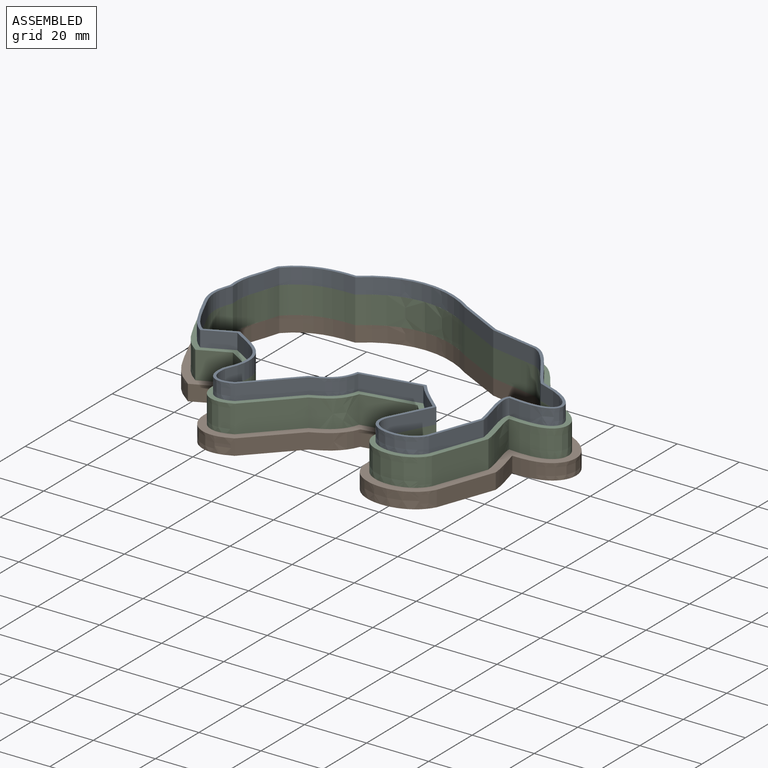
[diagram: assembled view]
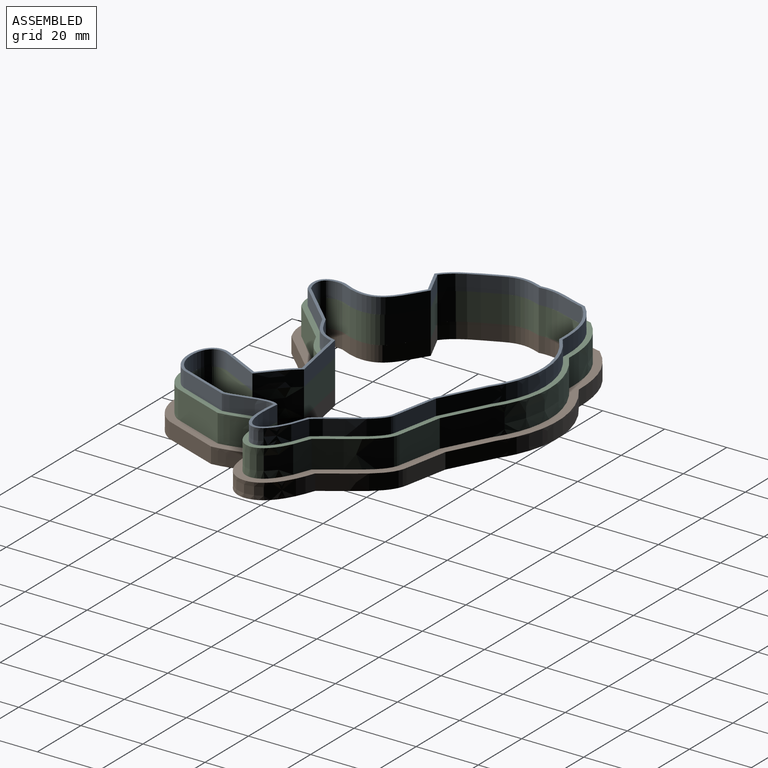
[diagram: assembled view, second angle]
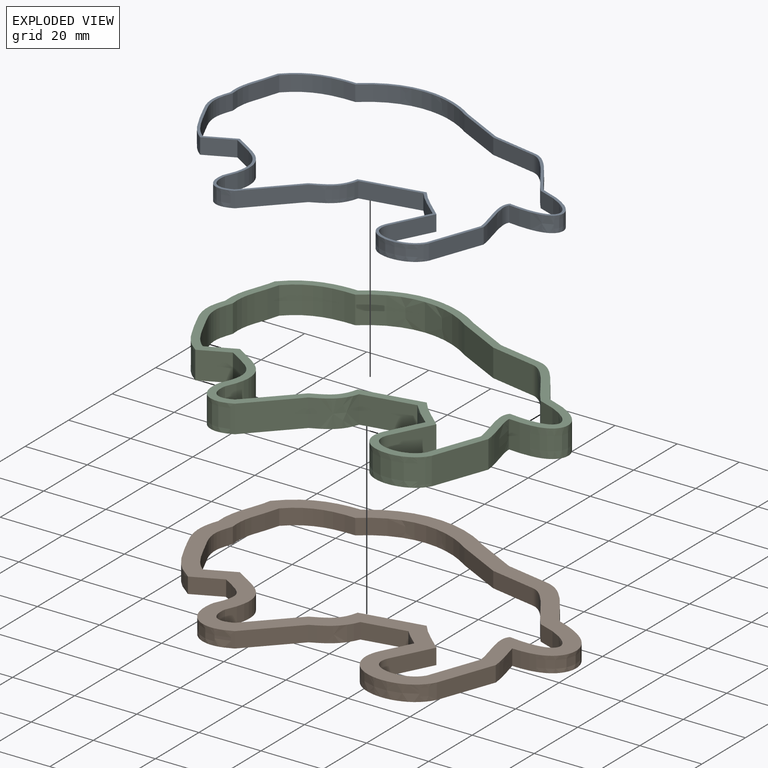
[diagram: exploded view]
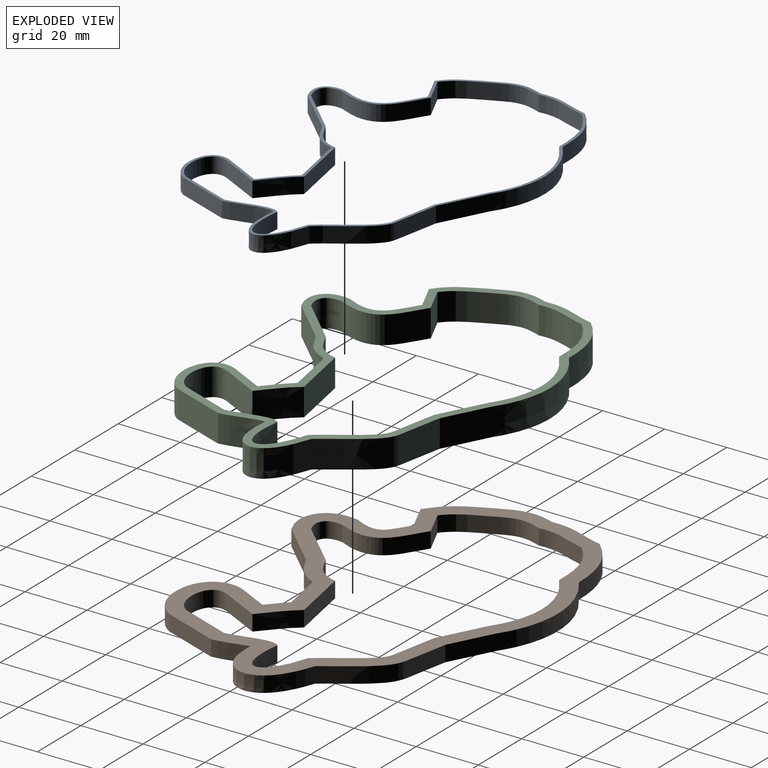
[diagram: exploded view, second angle]
ASSEMBLY  parts=3 mates=2
PART A: 42 faces, bbox 123.7x88.7x10.1 mm
  f0: plane 123.73x88.65mm, normal (0,0,1), area 336.6mm2, adj f2,f3,f4,f5,f6,f7,f8,f9
  f1: plane 123.73x88.65mm, normal (0,0,-1), area 336.6mm2, adj f2,f3,f4,f5,f6,f7,f8,f9
  f2: extruded ~34.96x6.77mm, area 191.8mm2, adj f0,f1,f3,f21
  f3: extruded ~20.36x7.11mm, area 113.2mm2, adj f0,f1,f2,f4
  f4: extruded ~16.67x5.08mm, area 87.5mm2, adj f0,f1,f3,f5
  f5: extruded ~12.4x5.08mm, area 65.3mm2, adj f0,f1,f4,f6
  f6: extruded ~15.19x9.5mm, area 92.1mm2, adj f0,f1,f5,f7
  f7: plane 9.07x5.08mm, normal (0.42,-0.91,0), area 50.8mm2, adj f0,f1,f6,f8
  f8: extruded ~20.1x11.58mm, area 131.9mm2, adj f0,f1,f7,f9
  f9: extruded ~8.41x7.3mm, area 70.8mm2, adj f0,f1,f8,f10
  f10: plane 14.35x13.69mm, normal (0.72,-0.69,0), area 100.7mm2, adj f0,f1,f9,f11
  f11: extruded ~9.47x9.45mm, area 71.1mm2, adj f0,f1,f10,f12
  f12: plane 18.52x5.08mm, normal (0.19,-0.98,0), area 95.8mm2, adj f0,f1,f11,f13
  f13: extruded ~9.21x8.91mm, area 65.2mm2, adj f0,f1,f12,f14
  f14: plane 11.99x6.1mm, normal (-0.89,0.45,0), area 68.3mm2, adj f0,f1,f13,f15
  f15: extruded ~16.71x8.44mm, area 123mm2, adj f0,f1,f14,f16
  f16: plane 16.59x6.05mm, normal (0.94,-0.34,0), area 89.7mm2, adj f0,f1,f15,f17
  f17: extruded ~15.04x5.08mm, area 78.3mm2, adj f0,f1,f16,f18
  f18: extruded ~14.65x13.38mm, area 167.3mm2, adj f0,f1,f17,f19
  f19: extruded ~17.3x14.9mm, area 118mm2, adj f0,f1,f18,f20
  f20: plane 14.65x5.08mm, normal (0.19,0.98,0), area 75.8mm2, adj f0,f1,f19,f21
  f21: plane 14.39x7.41mm, normal (0.46,0.89,0), area 82.2mm2, adj f0,f1,f2,f20
  f22: extruded ~34.19x6.78mm, area 188mm2, adj f0,f1,f23,f41
  f23: extruded ~19.85x6.65mm, area 109.9mm2, adj f0,f1,f22,f24
  f24: extruded ~16.32x5.08mm, area 85.7mm2, adj f0,f1,f23,f25
  f25: extruded ~11.91x5.08mm, area 62.7mm2, adj f0,f1,f24,f26
  f26: extruded ~14.56x8.82mm, area 87.3mm2, adj f0,f1,f25,f27
  f27: plane 9.04x5.08mm, normal (-0.42,0.91,0), area 50.6mm2, adj f0,f1,f26,f28
  f28: extruded ~21.4x12.38mm, area 140.3mm2, adj f0,f1,f27,f29
  f29: extruded ~7x6.14mm, area 59.6mm2, adj f0,f1,f28,f30
  f30: plane 14.34x13.68mm, normal (-0.72,0.69,0), area 100.7mm2, adj f0,f1,f29,f31
  f31: extruded ~9.48x9.26mm, area 70.9mm2, adj f0,f1,f30,f32
  f32: plane 19.63x5.08mm, normal (-0.19,0.98,0), area 101.5mm2, adj f0,f1,f31,f33
  f33: extruded ~9.93x9.71mm, area 70.7mm2, adj f0,f1,f32,f34
  f34: plane 12.57x6.4mm, normal (0.89,-0.45,0), area 71.7mm2, adj f0,f1,f33,f35
  f35: extruded ~15.01x7.15mm, area 108.6mm2, adj f0,f1,f34,f36
  f36: plane 16.32x5.96mm, normal (-0.94,0.34,0), area 88.3mm2, adj f0,f1,f35,f37
  f37: extruded ~15.88x5.08mm, area 83.3mm2, adj f0,f1,f36,f38
  f38: extruded ~14.14x11.72mm, area 157.7mm2, adj f0,f1,f37,f39
  f39: extruded ~17.2x14.56mm, area 116.2mm2, adj f0,f1,f38,f40
  f40: plane 14.78x5.08mm, normal (-0.19,-0.98,0), area 76.5mm2, adj f0,f1,f39,f41
  f41: plane 14.56x7.5mm, normal (-0.46,-0.89,0), area 83.2mm2, adj f0,f1,f22,f40
PART B: 42 faces, bbox 129.5x94.9x9.3 mm
  f0: plane 129.46x94.93mm, normal (0,0,1), area 1984.1mm2, adj f2,f3,f4,f5,f6,f7,f8,f9
  f1: plane 129.46x94.93mm, normal (0,0,-1), area 1984.1mm2, adj f2,f3,f4,f5,f6,f7,f8,f9
  f2: extruded ~38.55x6.75mm, area 210mm2, adj f0,f1,f3,f21
  f3: extruded ~22.77x9.25mm, area 128.7mm2, adj f0,f1,f2,f4
  f4: extruded ~18.22x5.08mm, area 95.3mm2, adj f0,f1,f3,f5
  f5: extruded ~14.79x5.08mm, area 77.5mm2, adj f0,f1,f4,f6
  f6: extruded ~18.17x12.72mm, area 115.8mm2, adj f0,f1,f5,f7
  f7: plane 9.29x5.08mm, normal (0.42,-0.91,0), area 52mm2, adj f0,f1,f6,f8
  f8: extruded ~14.06x7.71mm, area 92.2mm2, adj f0,f1,f7,f9
  f9: extruded ~15.07x12.78mm, area 123.6mm2, adj f0,f1,f8,f10
  f10: plane 14.39x13.72mm, normal (0.72,-0.69,0), area 101mm2, adj f0,f1,f9,f11
  f11: extruded ~10.17x9.24mm, area 71.8mm2, adj f0,f1,f10,f12
  f12: plane 13.67x5.08mm, normal (0.19,-0.98,0), area 70.7mm2, adj f0,f1,f11,f13
  f13: extruded ~5.64x5.31mm, area 39.4mm2, adj f0,f1,f12,f14
  f14: plane 9.12x5.08mm, normal (-0.89,0.45,0), area 52mm2, adj f0,f1,f13,f15
  f15: extruded ~24.72x14.52mm, area 191.3mm2, adj f0,f1,f14,f16
  f16: plane 17.84x6.51mm, normal (0.94,-0.34,0), area 96.5mm2, adj f0,f1,f15,f17
  f17: extruded ~10.99x5.08mm, area 57.2mm2, adj f0,f1,f16,f18
  f18: extruded ~21.19x14.67mm, area 199.9mm2, adj f0,f1,f17,f19
  f19: extruded ~17.8x16.6mm, area 126.6mm2, adj f0,f1,f18,f20
  f20: plane 14.04x5.08mm, normal (0.19,0.98,0), area 72.7mm2, adj f0,f1,f19,f21
  f21: plane 13.62x7.02mm, normal (0.46,0.89,0), area 77.8mm2, adj f0,f1,f2,f20
  f22: extruded ~34.19x6.78mm, area 188mm2, adj f0,f1,f23,f41
  f23: extruded ~19.85x6.65mm, area 109.9mm2, adj f0,f1,f22,f24
  f24: extruded ~16.32x5.08mm, area 85.7mm2, adj f0,f1,f23,f25
  f25: extruded ~11.91x5.08mm, area 62.7mm2, adj f0,f1,f24,f26
  f26: extruded ~14.56x8.82mm, area 87.3mm2, adj f0,f1,f25,f27
  f27: plane 9.04x5.08mm, normal (-0.42,0.91,0), area 50.6mm2, adj f0,f1,f26,f28
  f28: extruded ~21.4x12.38mm, area 140.3mm2, adj f0,f1,f27,f29
  f29: extruded ~7x6.14mm, area 59.6mm2, adj f0,f1,f28,f30
  f30: plane 14.34x13.68mm, normal (-0.72,0.69,0), area 100.7mm2, adj f0,f1,f29,f31
  f31: extruded ~9.48x9.26mm, area 70.9mm2, adj f0,f1,f30,f32
  f32: plane 19.63x5.08mm, normal (-0.19,0.98,0), area 101.5mm2, adj f0,f1,f31,f33
  f33: extruded ~9.93x9.71mm, area 70.7mm2, adj f0,f1,f32,f34
  f34: plane 12.57x6.4mm, normal (0.89,-0.45,0), area 71.7mm2, adj f0,f1,f33,f35
  f35: extruded ~15.01x7.15mm, area 108.6mm2, adj f0,f1,f34,f36
  f36: plane 16.32x5.96mm, normal (-0.94,0.34,0), area 88.3mm2, adj f0,f1,f35,f37
  f37: extruded ~15.88x5.08mm, area 83.3mm2, adj f0,f1,f36,f38
  f38: extruded ~14.14x11.72mm, area 157.7mm2, adj f0,f1,f37,f39
  f39: extruded ~17.2x14.56mm, area 116.2mm2, adj f0,f1,f38,f40
  f40: plane 14.78x5.08mm, normal (-0.19,-0.98,0), area 76.5mm2, adj f0,f1,f39,f41
  f41: plane 14.56x7.5mm, normal (-0.46,-0.89,0), area 83.2mm2, adj f0,f1,f22,f40
PART C: 42 faces, bbox 124.3x89.6x12.9 mm
  f0: plane 124.31x89.63mm, normal (0,0,1), area 973.9mm2, adj f2,f3,f4,f5,f6,f7,f8,f9
  f1: plane 124.31x89.63mm, normal (0,0,-1), area 973.9mm2, adj f2,f3,f4,f5,f6,f7,f8,f9
  f2: extruded ~36.38x8.89mm, area 348.3mm2, adj f0,f1,f3,f21
  f3: extruded ~21.3x8.89mm, area 208.9mm2, adj f0,f1,f2,f4
  f4: extruded ~17.29x8.89mm, area 158.6mm2, adj f0,f1,f3,f5
  f5: extruded ~13.33x8.89mm, area 122.7mm2, adj f0,f1,f4,f6
  f6: extruded ~16.36x10.77mm, area 176.9mm2, adj f0,f1,f5,f7
  f7: plane 9.14x8.89mm, normal (0.42,-0.91,0), area 89.6mm2, adj f0,f1,f6,f8
  f8: extruded ~17.71x10.07mm, area 203.8mm2, adj f0,f1,f7,f9
  f9: extruded ~11.03x9.46mm, area 160.8mm2, adj f0,f1,f8,f10
  f10: plane 14.37x13.7mm, normal (0.72,-0.69,0), area 176.5mm2, adj f0,f1,f9,f11
  f11: extruded ~9.79x9.37mm, area 125.1mm2, adj f0,f1,f10,f12
  f12: plane 16.53x8.89mm, normal (0.19,-0.98,0), area 149.6mm2, adj f0,f1,f11,f13
  f13: extruded ~8.89x7.84mm, area 96.4mm2, adj f0,f1,f12,f14
  f14: plane 10.88x8.89mm, normal (-0.89,0.45,0), area 108.5mm2, adj f0,f1,f13,f15
  f15: extruded ~19.87x10.83mm, area 261.7mm2, adj f0,f1,f14,f16
  f16: plane 17.08x8.89mm, normal (0.94,-0.34,0), area 161.6mm2, adj f0,f1,f15,f17
  f17: extruded ~13.44x8.89mm, area 122.4mm2, adj f0,f1,f16,f18
  f18: extruded ~16.47x15.07mm, area 319mm2, adj f0,f1,f17,f19
  f19: extruded ~17.49x15.56mm, area 212.2mm2, adj f0,f1,f18,f20
  f20: plane 14.41x8.89mm, normal (0.19,0.98,0), area 130.5mm2, adj f0,f1,f19,f21
  f21: plane 14.09x8.89mm, normal (0.46,0.89,0), area 140.9mm2, adj f0,f1,f2,f20
  f22: extruded ~34.19x8.89mm, area 329mm2, adj f0,f1,f23,f41
  f23: extruded ~19.85x8.89mm, area 192.3mm2, adj f0,f1,f22,f24
  f24: extruded ~16.32x8.89mm, area 149.9mm2, adj f0,f1,f23,f25
  f25: extruded ~11.91x8.89mm, area 109.8mm2, adj f0,f1,f24,f26
  f26: extruded ~14.56x8.89mm, area 152.8mm2, adj f0,f1,f25,f27
  f27: plane 9.04x8.89mm, normal (-0.42,0.91,0), area 88.6mm2, adj f0,f1,f26,f28
  f28: extruded ~21.4x12.38mm, area 245.5mm2, adj f0,f1,f27,f29
  f29: extruded ~8.89x7mm, area 104.2mm2, adj f0,f1,f28,f30
  f30: plane 14.34x13.68mm, normal (-0.72,0.69,0), area 176.1mm2, adj f0,f1,f29,f31
  f31: extruded ~9.48x9.26mm, area 124mm2, adj f0,f1,f30,f32
  f32: plane 19.63x8.89mm, normal (-0.19,0.98,0), area 177.7mm2, adj f0,f1,f31,f33
  f33: extruded ~9.93x9.71mm, area 123.7mm2, adj f0,f1,f32,f34
  f34: plane 12.57x8.89mm, normal (0.89,-0.45,0), area 125.4mm2, adj f0,f1,f33,f35
  f35: extruded ~15.01x8.89mm, area 190.1mm2, adj f0,f1,f34,f36
  f36: plane 16.32x8.89mm, normal (-0.94,0.34,0), area 154.5mm2, adj f0,f1,f35,f37
  f37: extruded ~15.88x8.89mm, area 145.9mm2, adj f0,f1,f36,f38
  f38: extruded ~14.14x11.72mm, area 276mm2, adj f0,f1,f37,f39
  f39: extruded ~17.2x14.56mm, area 203.4mm2, adj f0,f1,f38,f40
  f40: plane 14.78x8.89mm, normal (-0.19,-0.98,0), area 133.8mm2, adj f0,f1,f39,f41
  f41: plane 14.56x8.89mm, normal (-0.46,-0.89,0), area 145.6mm2, adj f0,f1,f22,f40
PLACE A t=(106.92,27.65,13.97)mm
PLACE B at identity
PLACE C t=(230.51,36.5,5.08)mm
MATE fastened C.f0 <-> A.f1  axis (0,0,1) through (162.21,22.85,13.97)mm
MATE fastened C.f1 <-> B.f0  axis (0,0,-1) through (162.21,22.85,5.08)mm
